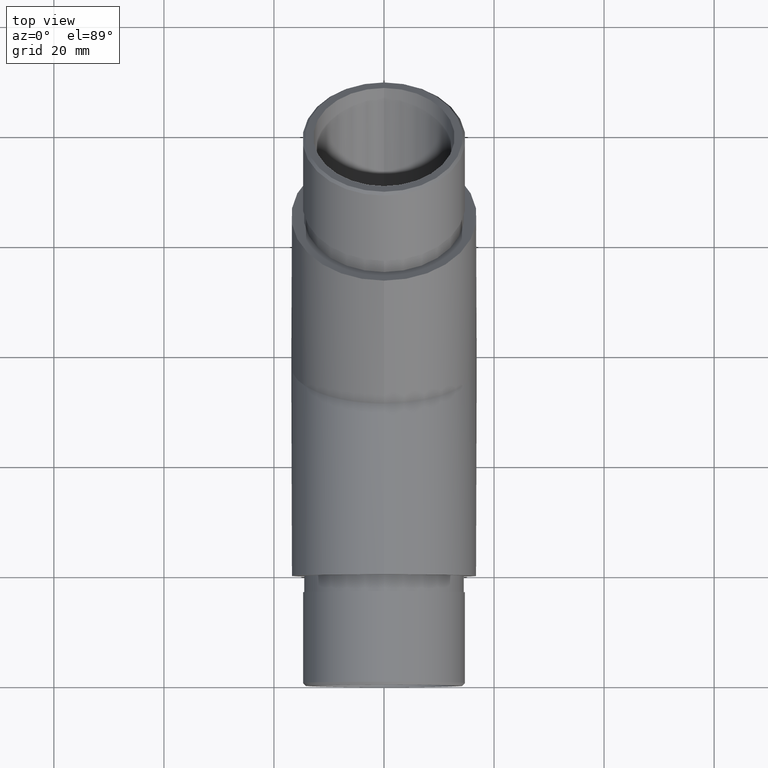
[diagram: clean part render]
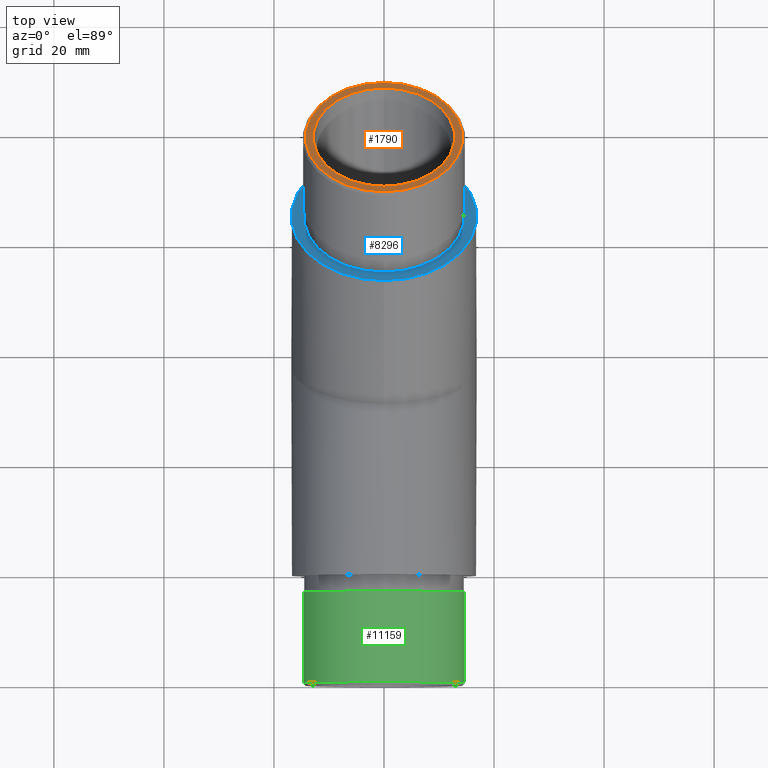
[diagram: same view with three faces highlighted in distinct colors, each labeled with its STEP entity id]
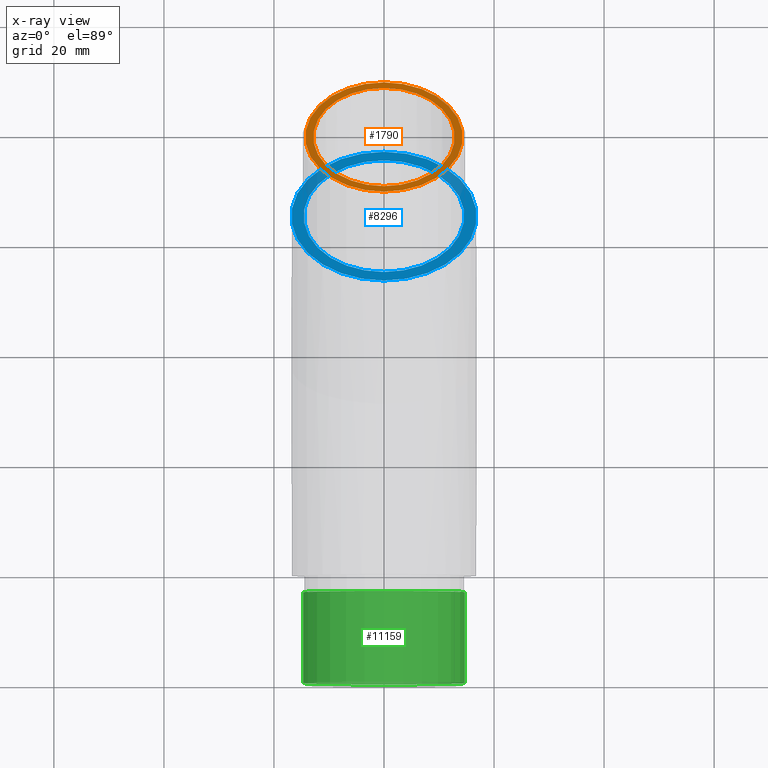
[diagram: x-ray of the same camera — body ghosted, the three highlighted faces saturated]
A machine part, top view with three faces highlighted in distinct colors.
The next image is the same camera in x-ray (body ghosted, the three faces saturated) — at least one of them is partly hidden behind the body in this view.
Their STEP definitions:

[orange] entity #1790 — the highlighted planar face has unit normal (0, 0.7071, 0.7071).
#309 = CIRCLE ( 'NONE', #9067, 14.29999999999993300 ) ;
#945 = CARTESIAN_POINT ( 'NONE',  ( 0.0000000000000000000, 88.13351365237932100, 31.94036790187190200 ) ) ;
#1308 = ORIENTED_EDGE ( 'NONE', *, *, #6116, .T. ) ;
#1468 = DIRECTION ( 'NONE',  ( 0.0000000000000000000, 0.7071067811865491300, -0.7071067811865459100 ) ) ;
#1537 = EDGE_LOOP ( 'NONE', ( #9859 ) ) ;
#1790 = ADVANCED_FACE ( 'NONE', ( #2522, #10933 ), #5495, .T. ) ;
#2522 = FACE_OUTER_BOUND ( 'NONE', #1537, .T. ) ;
#3755 = DIRECTION ( 'NONE',  ( 0.0000000000000000000, 0.7071067811865458000, 0.7071067811865492400 ) ) ;
#3796 = CARTESIAN_POINT ( 'NONE',  ( 0.0000000000000000000, 79.04719151413215200, 41.02669004011901400 ) ) ;
#4162 = DIRECTION ( 'NONE',  ( -0.0000000000000000000, -0.7071067811865459100, -0.7071067811865492400 ) ) ;
#4214 = DIRECTION ( 'NONE',  ( 0.0000000000000000000, 0.7071067811865459100, 0.7071067811865492400 ) ) ;
#4661 = VERTEX_POINT ( 'NONE', #945 ) ;
#5080 = VERTEX_POINT ( 'NONE', #8807 ) ;
#5495 = PLANE ( 'NONE',  #9026 ) ;
#6116 = EDGE_CURVE ( 'NONE', #4661, #4661, #8201, .T. ) ;
#6770 = AXIS2_PLACEMENT_3D ( 'NONE', #9444, #4162, #1468 ) ;
#7754 = CARTESIAN_POINT ( 'NONE',  ( 0.0000000000000000000, 79.04719151413216600, 41.02669004011900700 ) ) ;
#8201 = CIRCLE ( 'NONE', #6770, 12.85000000000000100 ) ;
#8251 = EDGE_CURVE ( 'NONE', #5080, #5080, #309, .T. ) ;
#8807 = CARTESIAN_POINT ( 'NONE',  ( 0.0000000000000000000, 68.93556454316456000, 51.13831701108656300 ) ) ;
#9026 = AXIS2_PLACEMENT_3D ( 'NONE', #3796, #3755, #9070 ) ;
#9067 = AXIS2_PLACEMENT_3D ( 'NONE', #7754, #4214, #9259 ) ;
#9070 = DIRECTION ( 'NONE',  ( 0.0000000000000000000, 0.7071067811865492400, -0.7071067811865458000 ) ) ;
#9259 = DIRECTION ( 'NONE',  ( 0.0000000000000000000, -0.7071067811865494600, 0.7071067811865455700 ) ) ;
#9444 = CARTESIAN_POINT ( 'NONE',  ( 0.0000000000000000000, 79.04719151413215200, 41.02669004011901400 ) ) ;
#9859 = ORIENTED_EDGE ( 'NONE', *, *, #8251, .T. ) ;
#10933 = FACE_BOUND ( 'NONE', #11400, .T. ) ;
#11400 = EDGE_LOOP ( 'NONE', ( #1308 ) ) ;

[blue] entity #8296 — the highlighted planar face has unit normal (0, 0.7071, 0.7071).
#281 = DIRECTION ( 'NONE',  ( 0.0000000000000000000, -0.7071067811865490200, 0.7071067811865460200 ) ) ;
#1085 = AXIS2_PLACEMENT_3D ( 'NONE', #7175, #6151, #8873 ) ;
#1487 = VERTEX_POINT ( 'NONE', #6162 ) ;
#1969 = CIRCLE ( 'NONE', #1085, 14.59999999999999800 ) ;
#2511 = DIRECTION ( 'NONE',  ( 0.0000000000000000000, 0.7071067811865462400, 0.7071067811865489100 ) ) ;
#3537 = ORIENTED_EDGE ( 'NONE', *, *, #3994, .F. ) ;
#3994 = EDGE_CURVE ( 'NONE', #1487, #1487, #6045, .T. ) ;
#4346 = CARTESIAN_POINT ( 'NONE',  ( 0.0000000000000000000, 54.58129688507762000, 37.20831342171159400 ) ) ;
#4741 = FACE_BOUND ( 'NONE', #10342, .T. ) ;
#5563 = EDGE_LOOP ( 'NONE', ( #3537 ) ) ;
#5957 = AXIS2_PLACEMENT_3D ( 'NONE', #6096, #2511, #11386 ) ;
#6045 = CIRCLE ( 'NONE', #10296, 16.85000000000000100 ) ;
#6096 = CARTESIAN_POINT ( 'NONE',  ( 0.0000000000000000000, 64.90505589040124300, 26.88455441638801300 ) ) ;
#6151 = DIRECTION ( 'NONE',  ( 0.0000000000000000000, 0.7071067811865462400, 0.7071067811865487900 ) ) ;
#6162 = CARTESIAN_POINT ( 'NONE',  ( 0.0000000000000000000, 52.99030662740789000, 38.79930367938131800 ) ) ;
#6673 = FACE_OUTER_BOUND ( 'NONE', #5563, .T. ) ;
#7175 = CARTESIAN_POINT ( 'NONE',  ( 0.0000000000000000000, 64.90505589040122900, 26.88455441638802400 ) ) ;
#8296 = ADVANCED_FACE ( 'NONE', ( #4741, #6673 ), #11344, .T. ) ;
#8873 = DIRECTION ( 'NONE',  ( 0.0000000000000000000, -0.7071067811865487900, 0.7071067811865462400 ) ) ;
#9355 = VERTEX_POINT ( 'NONE', #4346 ) ;
#9376 = EDGE_CURVE ( 'NONE', #9355, #9355, #1969, .T. ) ;
#10296 = AXIS2_PLACEMENT_3D ( 'NONE', #10747, #10890, #281 ) ;
#10342 = EDGE_LOOP ( 'NONE', ( #11129 ) ) ;
#10747 = CARTESIAN_POINT ( 'NONE',  ( 0.0000000000000000000, 64.90505589040124300, 26.88455441638801300 ) ) ;
#10890 = DIRECTION ( 'NONE',  ( -0.0000000000000000000, -0.7071067811865462400, -0.7071067811865487900 ) ) ;
#11129 = ORIENTED_EDGE ( 'NONE', *, *, #9376, .F. ) ;
#11344 = PLANE ( 'NONE',  #5957 ) ;
#11386 = DIRECTION ( 'NONE',  ( 0.0000000000000000000, -0.7071067811865489100, 0.7071067811865462400 ) ) ;

[green] entity #11159 — the highlighted cylindrical surface (bore or boss wall) has radius 14.8 mm, axis along (-0, 1, -0).
#578 = CIRCLE ( 'NONE', #6054, 14.79999999999999900 ) ;
#809 = DIRECTION ( 'NONE',  ( 0.0000000000000000000, -1.000000000000000000, 0.0000000000000000000 ) ) ;
#828 = CARTESIAN_POINT ( 'NONE',  ( 0.0000000000000000000, -3.000000000000000000, -14.79999999999999900 ) ) ;
#1704 = DIRECTION ( 'NONE',  ( 0.0000000000000000000, 0.0000000000000000000, -1.000000000000000000 ) ) ;
#1787 = FACE_OUTER_BOUND ( 'NONE', #9002, .T. ) ;
#2180 = FACE_OUTER_BOUND ( 'NONE', #3111, .T. ) ;
#2325 = VERTEX_POINT ( 'NONE', #9740 ) ;
#2737 = CYLINDRICAL_SURFACE ( 'NONE', #9372, 14.79999999999999900 ) ;
#2742 = DIRECTION ( 'NONE',  ( -0.0000000000000000000, 1.000000000000000000, -0.0000000000000000000 ) ) ;
#2809 = DIRECTION ( 'NONE',  ( 0.0000000000000000000, 0.0000000000000000000, 1.000000000000000000 ) ) ;
#3111 = EDGE_LOOP ( 'NONE', ( #3945 ) ) ;
#3298 = DIRECTION ( 'NONE',  ( 0.0000000000000000000, 1.000000000000000000, 0.0000000000000000000 ) ) ;
#3945 = ORIENTED_EDGE ( 'NONE', *, *, #9546, .T. ) ;
#4138 = CARTESIAN_POINT ( 'NONE',  ( 0.0000000000000000000, -19.49999999999998600, 0.0000000000000000000 ) ) ;
#4705 = AXIS2_PLACEMENT_3D ( 'NONE', #9555, #809, #1704 ) ;
#5968 = CIRCLE ( 'NONE', #4705, 14.79999999999999900 ) ;
#6054 = AXIS2_PLACEMENT_3D ( 'NONE', #4138, #3298, #11274 ) ;
#6323 = CARTESIAN_POINT ( 'NONE',  ( 0.0000000000000000000, -20.00000000000000000, 0.0000000000000000000 ) ) ;
#8112 = VERTEX_POINT ( 'NONE', #828 ) ;
#9002 = EDGE_LOOP ( 'NONE', ( #10997 ) ) ;
#9372 = AXIS2_PLACEMENT_3D ( 'NONE', #6323, #2742, #2809 ) ;
#9546 = EDGE_CURVE ( 'NONE', #2325, #2325, #578, .T. ) ;
#9555 = CARTESIAN_POINT ( 'NONE',  ( 0.0000000000000000000, -3.000000000000000000, 0.0000000000000000000 ) ) ;
#9673 = EDGE_CURVE ( 'NONE', #8112, #8112, #5968, .T. ) ;
#9740 = CARTESIAN_POINT ( 'NONE',  ( 0.0000000000000000000, -19.49999999999998600, -14.79999999999999900 ) ) ;
#10997 = ORIENTED_EDGE ( 'NONE', *, *, #9673, .T. ) ;
#11159 = ADVANCED_FACE ( 'NONE', ( #2180, #1787 ), #2737, .T. ) ;
#11274 = DIRECTION ( 'NONE',  ( 0.0000000000000000000, 0.0000000000000000000, -1.000000000000000000 ) ) ;